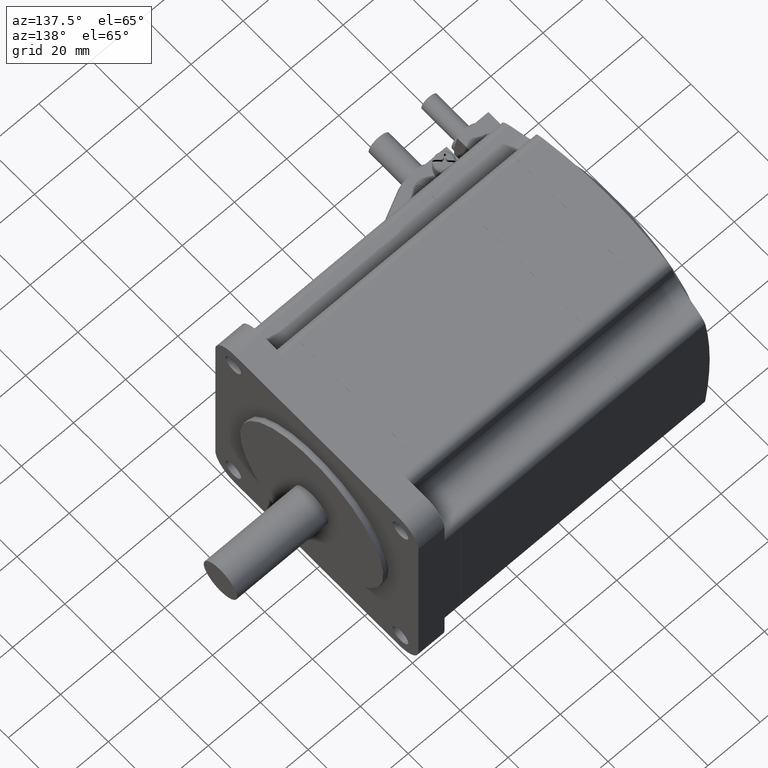
[diagram: clean part render]
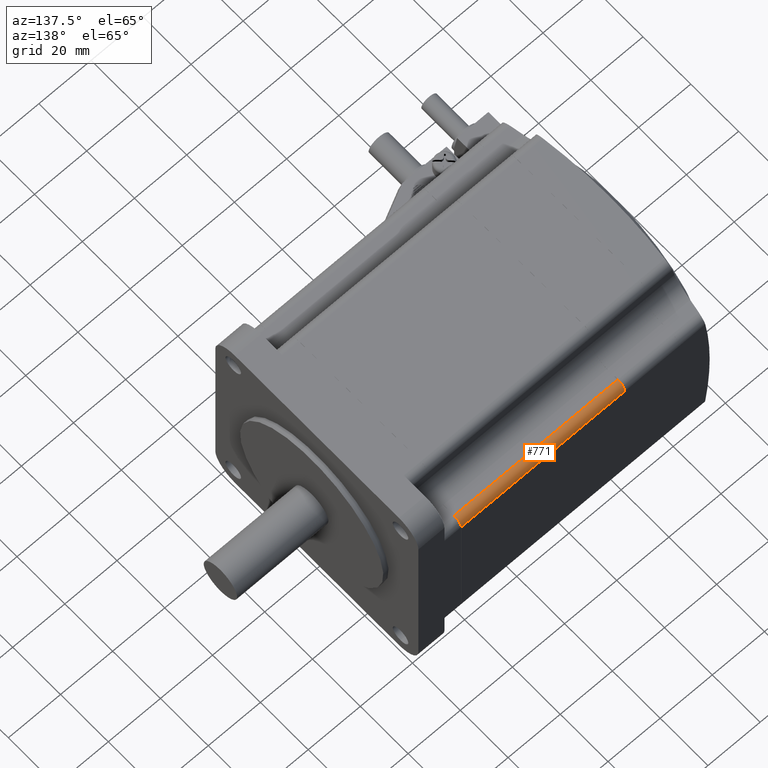
[diagram: same view with one face highlighted and labeled with its STEP entity id]
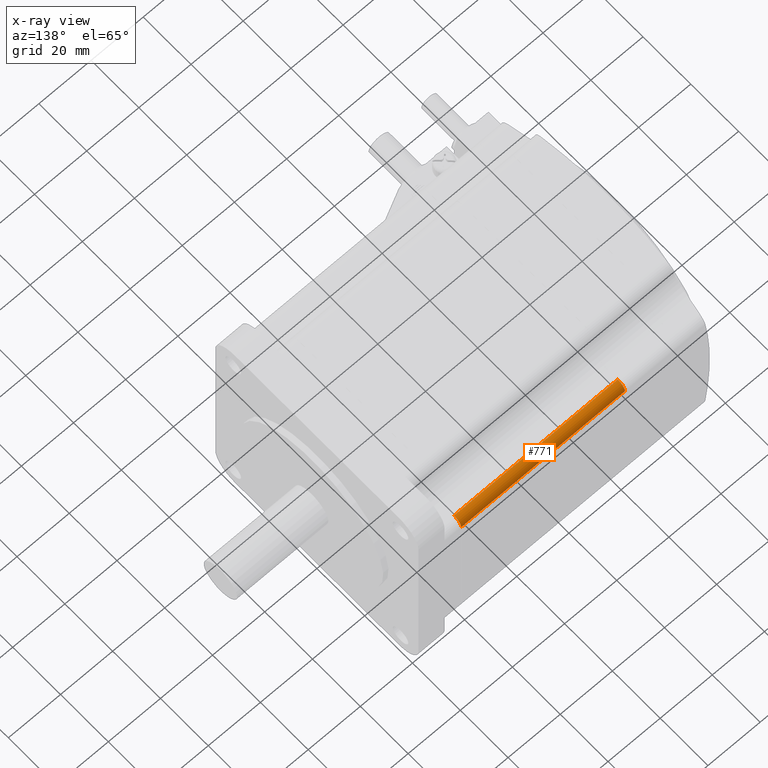
[diagram: x-ray of the same camera — body ghosted, the highlighted face saturated]
A machine part, auxiliary view. The second image highlights one B-rep face of the part: STEP entity #771.
The next image is the same camera in x-ray: the body ghosted, the highlighted face saturated — about 0% of this face is hidden behind the body in this view.
In plain terms, the highlighted cylindrical surface (edge-blend (fillet) strip) has radius 3 mm, axis along (1, -0, -0).
Its self-contained STEP definition (entity closure, byte-faithful):
#771 = ADVANCED_FACE( '', ( #1588 ), #1589, .T. );
#1588 = FACE_OUTER_BOUND( '', #2416, .T. );
#1589 = CYLINDRICAL_SURFACE( '', #2417, 3.00000000000000 );
#2416 = EDGE_LOOP( '', ( #4730, #4731, #4732, #4733 ) );
#2417 = AXIS2_PLACEMENT_3D( '', #4734, #4735, #4736 );
#4730 = ORIENTED_EDGE( '', *, *, #5846, .T. );
#4731 = ORIENTED_EDGE( '', *, *, #5868, .T. );
#4732 = ORIENTED_EDGE( '', *, *, #5759, .F. );
#4733 = ORIENTED_EDGE( '', *, *, #5093, .F. );
#4734 = CARTESIAN_POINT( '', ( -9.99999999999999, 39.5000000000000, 25.5000000000000 ) );
#4735 = DIRECTION( '', ( 1.00000000000000, -0.000000000000000, -0.000000000000000 ) );
#4736 = DIRECTION( '', ( 0.000000000000000, 0.000000000000000, 1.00000000000000 ) );
#5093 = EDGE_CURVE( '', #6186, #6188, #6189, .T. );
#5759 = EDGE_CURVE( '', #6188, #7182, #7183, .T. );
#5846 = EDGE_CURVE( '', #6186, #7280, #7282, .T. );
#5868 = EDGE_CURVE( '', #7280, #7182, #7306, .T. );
#6186 = VERTEX_POINT( '', #7762 );
#6188 = VERTEX_POINT( '', #7765 );
#6189 = CIRCLE( '', #7766, 3.00000000000000 );
#7182 = VERTEX_POINT( '', #9378 );
#7183 = LINE( '', #9379, #9380 );
#7280 = VERTEX_POINT( '', #9509 );
#7282 = LINE( '', #9512, #9513 );
#7306 = CIRCLE( '', #9618, 3.00000000000000 );
#7762 = CARTESIAN_POINT( '', ( -16.4000000000000, 42.5000000000000, 25.5000000000000 ) );
#7765 = CARTESIAN_POINT( '', ( -16.4000000000000, 39.5000000000000, 28.5000000000000 ) );
#7766 = AXIS2_PLACEMENT_3D( '', #9861, #9862, #9863 );
#9378 = CARTESIAN_POINT( '', ( -79.1900000000000, 39.5000000000000, 28.5000000000000 ) );
#9379 = CARTESIAN_POINT( '', ( -9.99999999999999, 39.5000000000000, 28.5000000000000 ) );
#9380 = VECTOR( '', #10656, 1000.00000000000 );
#9509 = CARTESIAN_POINT( '', ( -79.1900000000000, 42.5000000000000, 25.5000000000000 ) );
#9512 = CARTESIAN_POINT( '', ( -9.99999999999999, 42.5000000000000, 25.5000000000000 ) );
#9513 = VECTOR( '', #10750, 1000.00000000000 );
#9618 = AXIS2_PLACEMENT_3D( '', #10767, #10768, #10769 );
#9861 = CARTESIAN_POINT( '', ( -16.4000000000000, 39.5000000000000, 25.5000000000000 ) );
#9862 = DIRECTION( '', ( 1.00000000000000, 0.000000000000000, 0.000000000000000 ) );
#9863 = DIRECTION( '', ( 0.000000000000000, 0.000000000000000, -1.00000000000000 ) );
#10656 = DIRECTION( '', ( -1.00000000000000, -0.000000000000000, -0.000000000000000 ) );
#10750 = DIRECTION( '', ( -1.00000000000000, -0.000000000000000, -0.000000000000000 ) );
#10767 = CARTESIAN_POINT( '', ( -79.1900000000000, 39.5000000000000, 25.5000000000000 ) );
#10768 = DIRECTION( '', ( 1.00000000000000, 0.000000000000000, 0.000000000000000 ) );
#10769 = DIRECTION( '', ( 0.000000000000000, 0.000000000000000, -1.00000000000000 ) );